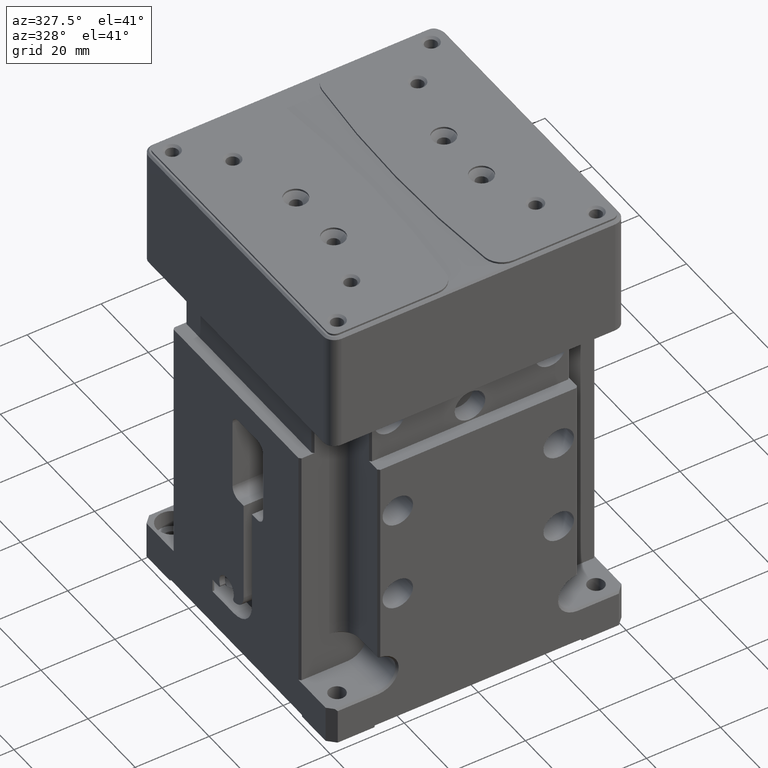
[diagram: clean part render]
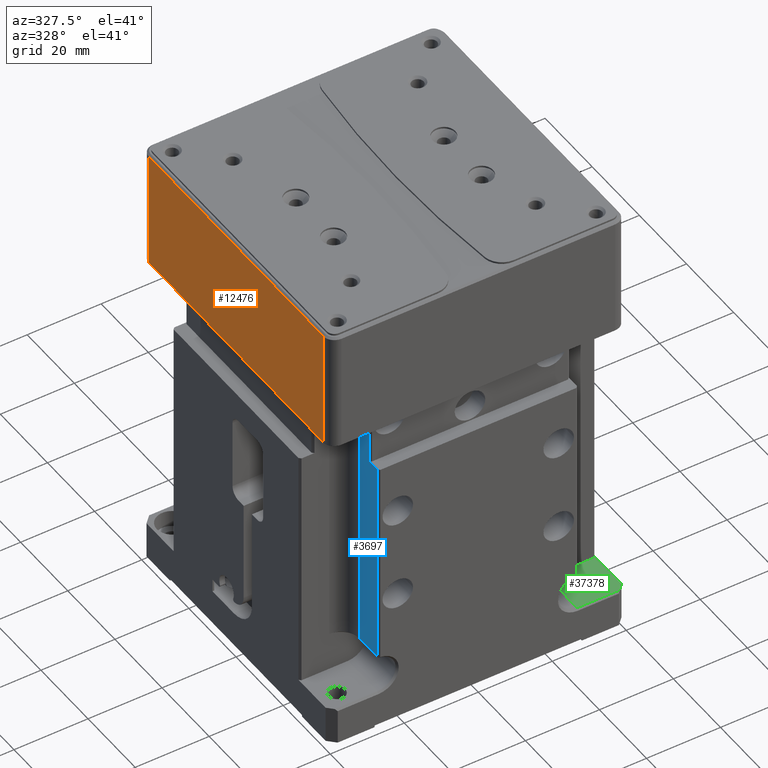
[diagram: same view with three faces highlighted in distinct colors, each labeled with its STEP entity id]
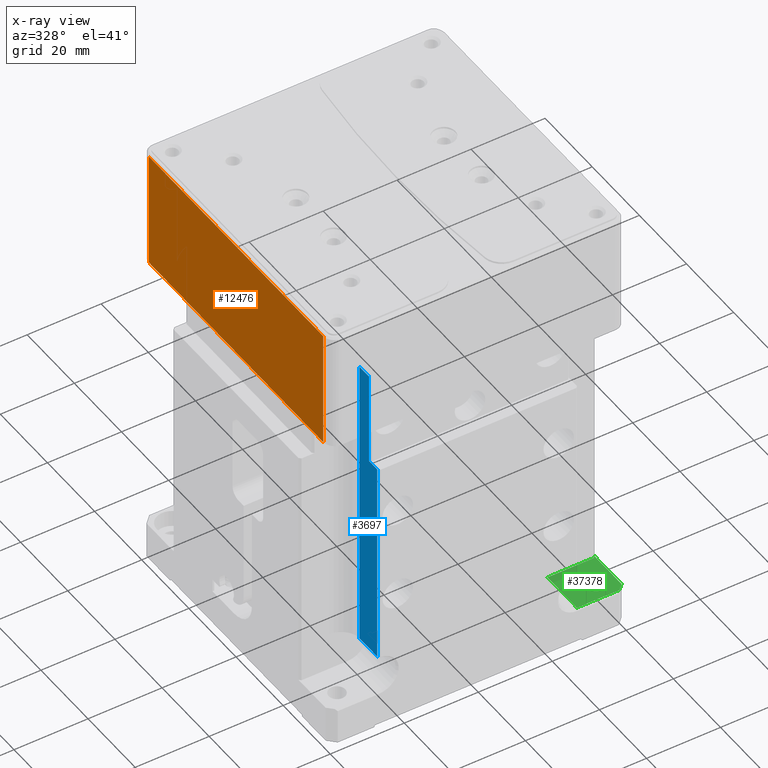
[diagram: x-ray of the same camera — body ghosted, the three highlighted faces saturated]
A machine part, auxiliary view with three faces highlighted in distinct colors.
The next image is the same camera in x-ray (body ghosted, the three faces saturated) — at least one of them is partly hidden behind the body in this view.
Their STEP definitions:

[orange] entity #12476 — the highlighted planar face has unit normal (-1, 0, 0).
#1438 = CARTESIAN_POINT ( 'NONE',  ( -40.00000000000000000, -37.00000000000000000, 79.50000000000000000 ) ) ;
#2376 = EDGE_CURVE ( 'NONE', #13807, #21157, #29660, .T. ) ;
#3347 = CARTESIAN_POINT ( 'NONE',  ( -39.99999999757000069, -36.99999996634999633, 111.5000000024000002 ) ) ;
#5922 = LINE ( 'NONE', #12058, #35560 ) ;
#6406 = CARTESIAN_POINT ( 'NONE',  ( -40.00000000000000000, 37.00000000000000000, 79.50000000000000000 ) ) ;
#6728 = PLANE ( 'NONE',  #12569 ) ;
#7694 = EDGE_CURVE ( 'NONE', #18618, #21157, #34799, .T. ) ;
#10094 = DIRECTION ( 'NONE',  ( -8.080514035016001840E-11, 8.543818984939000288E-10, -1.000000000000000000 ) ) ;
#10560 = ORIENTED_EDGE ( 'NONE', *, *, #15755, .T. ) ;
#11485 = VECTOR ( 'NONE', #26760, 1000.000000000000000 ) ;
#12058 = CARTESIAN_POINT ( 'NONE',  ( -39.99999999757000069, -36.99999996634999633, 111.5000000024000002 ) ) ;
#12084 = DIRECTION ( 'NONE',  ( 0.000000000000000000, 0.000000000000000000, 1.000000000000000000 ) ) ;
#12476 = ADVANCED_FACE ( 'NONE', ( #18615 ), #6728, .T. ) ;
#12569 = AXIS2_PLACEMENT_3D ( 'NONE', #24009, #15719, #12084 ) ;
#13807 = VERTEX_POINT ( 'NONE', #15555 ) ;
#15555 = CARTESIAN_POINT ( 'NONE',  ( -40.00000000000000000, -37.00000000000000000, 111.5000000000000000 ) ) ;
#15719 = DIRECTION ( 'NONE',  ( -1.000000000000000000, 0.000000000000000000, 0.000000000000000000 ) ) ;
#15755 = EDGE_CURVE ( 'NONE', #34438, #18618, #24688, .T. ) ;
#18615 = FACE_OUTER_BOUND ( 'NONE', #36070, .T. ) ;
#18618 = VERTEX_POINT ( 'NONE', #33310 ) ;
#21157 = VERTEX_POINT ( 'NONE', #1438 ) ;
#22866 = VECTOR ( 'NONE', #10094, 1000.000000000000000 ) ;
#23774 = CARTESIAN_POINT ( 'NONE',  ( -39.99999999740999357, 36.99999997265999951, 111.5000000026000038 ) ) ;
#24009 = CARTESIAN_POINT ( 'NONE',  ( -40.00000000000000000, 40.00000000000000000, 79.50000000000000000 ) ) ;
#24688 = LINE ( 'NONE', #27943, #22866 ) ;
#26760 = DIRECTION ( 'NONE',  ( -7.581024696315000995E-11, -1.051534415017999976E-09, -1.000000000000000000 ) ) ;
#27244 = DIRECTION ( 'NONE',  ( 2.159953899201999849E-12, 1.000000000000000000, 2.159665841336000256E-12 ) ) ;
#27943 = CARTESIAN_POINT ( 'NONE',  ( -39.99999999740999357, 36.99999997265999951, 111.5000000026000038 ) ) ;
#29660 = LINE ( 'NONE', #3347, #11485 ) ;
#32531 = DIRECTION ( 'NONE',  ( 0.000000000000000000, -1.000000000000000000, 0.000000000000000000 ) ) ;
#32780 = ORIENTED_EDGE ( 'NONE', *, *, #2376, .F. ) ;
#33310 = CARTESIAN_POINT ( 'NONE',  ( -40.00000000000000000, 37.00000000000000000, 79.50000000000000000 ) ) ;
#33764 = VECTOR ( 'NONE', #32531, 1000.000000000000000 ) ;
#34438 = VERTEX_POINT ( 'NONE', #23774 ) ;
#34799 = LINE ( 'NONE', #6406, #33764 ) ;
#35560 = VECTOR ( 'NONE', #27244, 1000.000000000000000 ) ;
#35643 = ORIENTED_EDGE ( 'NONE', *, *, #37893, .T. ) ;
#35778 = ORIENTED_EDGE ( 'NONE', *, *, #7694, .T. ) ;
#36070 = EDGE_LOOP ( 'NONE', ( #10560, #35778, #32780, #35643 ) ) ;
#37893 = EDGE_CURVE ( 'NONE', #13807, #34438, #5922, .T. ) ;

[blue] entity #3697 — the highlighted planar face has unit normal (1, 0, 0).
#81 = EDGE_CURVE ( 'NONE', #25015, #16219, #36411, .T. ) ;
#1471 = CARTESIAN_POINT ( 'NONE',  ( -27.00000000000000000, -36.00000000000000000, 67.00000000000000000 ) ) ;
#1941 = CARTESIAN_POINT ( 'NONE',  ( -27.00000000000000000, -36.00000000000000000, 67.00000000000000000 ) ) ;
#2356 = CARTESIAN_POINT ( 'NONE',  ( -27.00000000000000000, -39.50000000000000000, 67.00000000000000000 ) ) ;
#2537 = CARTESIAN_POINT ( 'NONE',  ( -27.00000000000000000, -36.00000000000000000, 92.50000000000000000 ) ) ;
#3410 = VERTEX_POINT ( 'NONE', #22921 ) ;
#3697 = ADVANCED_FACE ( 'NONE', ( #10429 ), #7158, .F. ) ;
#4442 = VERTEX_POINT ( 'NONE', #19324 ) ;
#5223 = VECTOR ( 'NONE', #36580, 1000.000000000000000 ) ;
#7158 = PLANE ( 'NONE',  #13103 ) ;
#7905 = DIRECTION ( 'NONE',  ( 1.000000000000000000, 0.000000000000000000, 0.000000000000000000 ) ) ;
#7933 = DIRECTION ( 'NONE',  ( 0.000000000000000000, 1.000000000000000000, 0.000000000000000000 ) ) ;
#10429 = FACE_OUTER_BOUND ( 'NONE', #31514, .T. ) ;
#11311 = EDGE_CURVE ( 'NONE', #16219, #3410, #16835, .T. ) ;
#11575 = LINE ( 'NONE', #37873, #26326 ) ;
#11770 = DIRECTION ( 'NONE',  ( -2.011923536325000134E-13, 2.290947660896000026E-10, -1.000000000000000000 ) ) ;
#13103 = AXIS2_PLACEMENT_3D ( 'NONE', #30792, #7905, #16744 ) ;
#13313 = CARTESIAN_POINT ( 'NONE',  ( -27.00000000002000178, -31.99999998120999578, 10.47722557500999940 ) ) ;
#13500 = EDGE_CURVE ( 'NONE', #4442, #22794, #33679, .T. ) ;
#14968 = VECTOR ( 'NONE', #19092, 1000.000000000000000 ) ;
#15096 = VERTEX_POINT ( 'NONE', #28270 ) ;
#16219 = VERTEX_POINT ( 'NONE', #2537 ) ;
#16471 = ORIENTED_EDGE ( 'NONE', *, *, #21381, .F. ) ;
#16744 = DIRECTION ( 'NONE',  ( 0.000000000000000000, 1.000000000000000000, 0.000000000000000000 ) ) ;
#16768 = CARTESIAN_POINT ( 'NONE',  ( -27.00000000000000000, -39.50000000000000000, 67.00000000000000000 ) ) ;
#16771 = LINE ( 'NONE', #2356, #25765 ) ;
#16835 = LINE ( 'NONE', #28369, #24778 ) ;
#16947 = DIRECTION ( 'NONE',  ( 0.000000000000000000, 0.000000000000000000, -1.000000000000000000 ) ) ;
#18051 = ORIENTED_EDGE ( 'NONE', *, *, #20232, .T. ) ;
#19092 = DIRECTION ( 'NONE',  ( 2.200787694714000282E-12, -1.000000000000000000, 5.216804752879999405E-12 ) ) ;
#19324 = CARTESIAN_POINT ( 'NONE',  ( -27.00000000002000178, -31.99999998120999578, 10.47722557500999940 ) ) ;
#20232 = EDGE_CURVE ( 'NONE', #3410, #4442, #11575, .T. ) ;
#20809 = VECTOR ( 'NONE', #7933, 1000.000000000000000 ) ;
#21381 = EDGE_CURVE ( 'NONE', #15096, #22794, #16771, .T. ) ;
#22509 = LINE ( 'NONE', #16768, #20809 ) ;
#22794 = VERTEX_POINT ( 'NONE', #24639 ) ;
#22921 = CARTESIAN_POINT ( 'NONE',  ( -27.00000000000000000, -32.00000000000000000, 92.50000000000000000 ) ) ;
#23608 = ORIENTED_EDGE ( 'NONE', *, *, #13500, .T. ) ;
#24639 = CARTESIAN_POINT ( 'NONE',  ( -27.00000000000000000, -39.50000000000000000, 10.47722557505000118 ) ) ;
#24778 = VECTOR ( 'NONE', #37751, 1000.000000000000000 ) ;
#25015 = VERTEX_POINT ( 'NONE', #1941 ) ;
#25765 = VECTOR ( 'NONE', #16947, 1000.000000000000000 ) ;
#26326 = VECTOR ( 'NONE', #11770, 1000.000000000000000 ) ;
#28270 = CARTESIAN_POINT ( 'NONE',  ( -27.00000000000000000, -39.50000000000000000, 67.00000000000000000 ) ) ;
#28369 = CARTESIAN_POINT ( 'NONE',  ( -27.00000000000000000, -36.00000000000000000, 92.50000000000000000 ) ) ;
#28594 = ORIENTED_EDGE ( 'NONE', *, *, #35624, .T. ) ;
#30792 = CARTESIAN_POINT ( 'NONE',  ( -27.00000000000000000, -40.00000000000000000, 92.50000000000000000 ) ) ;
#31115 = ORIENTED_EDGE ( 'NONE', *, *, #11311, .T. ) ;
#31514 = EDGE_LOOP ( 'NONE', ( #16471, #28594, #37427, #31115, #18051, #23608 ) ) ;
#33679 = LINE ( 'NONE', #13313, #14968 ) ;
#35624 = EDGE_CURVE ( 'NONE', #15096, #25015, #22509, .T. ) ;
#36411 = LINE ( 'NONE', #1471, #5223 ) ;
#36580 = DIRECTION ( 'NONE',  ( 0.000000000000000000, 0.000000000000000000, 1.000000000000000000 ) ) ;
#37427 = ORIENTED_EDGE ( 'NONE', *, *, #81, .T. ) ;
#37751 = DIRECTION ( 'NONE',  ( 0.000000000000000000, 1.000000000000000000, 0.000000000000000000 ) ) ;
#37873 = CARTESIAN_POINT ( 'NONE',  ( -27.00000000000000000, -32.00000000000000000, 92.50000000000000000 ) ) ;

[green] entity #37378 — the highlighted planar face has unit normal (0, 0, 1).
#489 = EDGE_CURVE ( 'NONE', #36870, #19432, #34971, .T. ) ;
#1042 = CARTESIAN_POINT ( 'NONE',  ( 35.00000000000000000, -35.00000000000000000, 0.000000000000000000 ) ) ;
#1748 = EDGE_CURVE ( 'NONE', #12178, #37773, #16639, .T. ) ;
#1892 = ORIENTED_EDGE ( 'NONE', *, *, #6668, .F. ) ;
#2073 = CARTESIAN_POINT ( 'NONE',  ( 27.00000009120384803, -31.16662125324333488, 3.740684999362181631E-20 ) ) ;
#2153 = VERTEX_POINT ( 'NONE', #35011 ) ;
#4383 = ORIENTED_EDGE ( 'NONE', *, *, #13875, .F. ) ;
#4870 = EDGE_CURVE ( 'NONE', #37710, #19432, #23120, .T. ) ;
#5110 = CARTESIAN_POINT ( 'NONE',  ( 39.50000000000000000, -27.00000000000000000, 0.000000000000000000 ) ) ;
#5215 = CARTESIAN_POINT ( 'NONE',  ( 38.50000000000000000, -39.50000000000000000, 0.000000000000000000 ) ) ;
#5545 = CARTESIAN_POINT ( 'NONE',  ( 40.00000000000000000, -26.50000000000000000, 0.000000000000000000 ) ) ;
#6668 = EDGE_CURVE ( 'NONE', #36870, #19138, #36905, .T. ) ;
#7857 = VECTOR ( 'NONE', #13904, 1000.000000000000114 ) ;
#8177 = CARTESIAN_POINT ( 'NONE',  ( 38.50000000000000000, -39.50000000000000000, 0.000000000000000000 ) ) ;
#8341 = B_SPLINE_CURVE_WITH_KNOTS ( 'NONE', 3,
 ( #36473, #13603, #2073, #22418 ),
 .UNSPECIFIED., .F., .F.,
 ( 4, 4 ),
 ( 0.000000000000000000, 1.000000000000000000 ),
 .UNSPECIFIED. ) ;
#8878 = ORIENTED_EDGE ( 'NONE', *, *, #19984, .F. ) ;
#9838 = AXIS2_PLACEMENT_3D ( 'NONE', #31209, #16604, #37138 ) ;
#10669 = CARTESIAN_POINT ( 'NONE',  ( 40.00000000000000000, -26.50000000000000000, 0.000000000000000000 ) ) ;
#10825 = ORIENTED_EDGE ( 'NONE', *, *, #19656, .T. ) ;
#11925 = CARTESIAN_POINT ( 'NONE',  ( -35.00000000000000000, -35.00000000000000000, 0.000000000000000000 ) ) ;
#12104 = FACE_BOUND ( 'NONE', #15694, .T. ) ;
#12178 = VERTEX_POINT ( 'NONE', #31321 ) ;
#12757 = DIRECTION ( 'NONE',  ( 0.000000000000000000, 0.000000000000000000, 1.000000000000000000 ) ) ;
#13603 = CARTESIAN_POINT ( 'NONE',  ( 27.00000018240565325, -35.33324250648666265, 1.948195482753464567E-15 ) ) ;
#13875 = EDGE_CURVE ( 'NONE', #19138, #37773, #8341, .T. ) ;
#13904 = DIRECTION ( 'NONE',  ( -0.7071067811865474617, -0.7071067811865474617, 0.000000000000000000 ) ) ;
#14549 = CARTESIAN_POINT ( 'NONE',  ( 27.00000000000000000, -27.00000000000000000, 0.000000000000000000 ) ) ;
#14618 = DIRECTION ( 'NONE',  ( 0.7071067811865969777, 0.7071067811864980568, 0.000000000000000000 ) ) ;
#14669 = VECTOR ( 'NONE', #28359, 1000.000000000000000 ) ;
#15694 = EDGE_LOOP ( 'NONE', ( #8878, #26930 ) ) ;
#16497 = AXIS2_PLACEMENT_3D ( 'NONE', #11925, #30176, #21309 ) ;
#16604 = DIRECTION ( 'NONE',  ( 0.000000000000000000, 0.000000000000000000, -1.000000000000000000 ) ) ;
#16639 = LINE ( 'NONE', #5110, #14669 ) ;
#16941 = CARTESIAN_POINT ( 'NONE',  ( 37.25000000000000000, -35.00000000000000000, 0.000000000000000000 ) ) ;
#17050 = ORIENTED_EDGE ( 'NONE', *, *, #1748, .T. ) ;
#18204 = CARTESIAN_POINT ( 'NONE',  ( 27.00000027360000132, -39.49986375972999753, 0.0001362402748190000052 ) ) ;
#18636 = PLANE ( 'NONE',  #16497 ) ;
#19138 = VERTEX_POINT ( 'NONE', #18204 ) ;
#19432 = VERTEX_POINT ( 'NONE', #35473 ) ;
#19656 = EDGE_CURVE ( 'NONE', #37710, #12178, #34269, .T. ) ;
#19984 = EDGE_CURVE ( 'NONE', #2153, #20053, #37317, .T. ) ;
#20053 = VERTEX_POINT ( 'NONE', #16941 ) ;
#20247 = CARTESIAN_POINT ( 'NONE',  ( 40.00000000000000000, -26.50000000000000000, 0.000000000000000000 ) ) ;
#20773 = AXIS2_PLACEMENT_3D ( 'NONE', #1042, #12757, #24477 ) ;
#21309 = DIRECTION ( 'NONE',  ( 1.000000000000000000, 0.000000000000000000, 0.000000000000000000 ) ) ;
#21474 = CIRCLE ( 'NONE', #9838, 2.250000000000001776 ) ;
#22418 = CARTESIAN_POINT ( 'NONE',  ( 27.00000000000000000, -27.00000000000000000, 0.000000000000000000 ) ) ;
#23120 = LINE ( 'NONE', #20247, #35375 ) ;
#24477 = DIRECTION ( 'NONE',  ( -1.000000000000000000, 0.000000000000000000, 0.000000000000000000 ) ) ;
#26594 = ORIENTED_EDGE ( 'NONE', *, *, #4870, .F. ) ;
#26604 = DIRECTION ( 'NONE',  ( 0.000000000000000000, -1.000000000000000000, 0.000000000000000000 ) ) ;
#26930 = ORIENTED_EDGE ( 'NONE', *, *, #28609, .T. ) ;
#27699 = CARTESIAN_POINT ( 'NONE',  ( 30.83333351573333303, -39.49990917315012240, 9.082684987377179523E-05 ) ) ;
#28359 = DIRECTION ( 'NONE',  ( -1.000000000000000000, 0.000000000000000000, 0.000000000000000000 ) ) ;
#28609 = EDGE_CURVE ( 'NONE', #2153, #20053, #21474, .T. ) ;
#29609 = FACE_OUTER_BOUND ( 'NONE', #37503, .T. ) ;
#29823 = CARTESIAN_POINT ( 'NONE',  ( 38.50000000000000000, -39.50000000000000000, 0.000000000000000000 ) ) ;
#30176 = DIRECTION ( 'NONE',  ( 0.000000000000000000, 0.000000000000000000, 1.000000000000000000 ) ) ;
#31209 = CARTESIAN_POINT ( 'NONE',  ( 35.00000000000000000, -35.00000000000000000, 0.000000000000000000 ) ) ;
#31321 = CARTESIAN_POINT ( 'NONE',  ( 39.50000000000000000, -27.00000000000000000, 0.000000000000000000 ) ) ;
#32461 = VECTOR ( 'NONE', #14618, 1000.000000000000000 ) ;
#33160 = ORIENTED_EDGE ( 'NONE', *, *, #489, .T. ) ;
#34269 = LINE ( 'NONE', #10669, #7857 ) ;
#34971 = LINE ( 'NONE', #5215, #32461 ) ;
#35011 = CARTESIAN_POINT ( 'NONE',  ( 32.75000000000000000, -35.00000000000000000, 0.000000000000000000 ) ) ;
#35375 = VECTOR ( 'NONE', #26604, 1000.000000000000000 ) ;
#35473 = CARTESIAN_POINT ( 'NONE',  ( 40.00000000000000000, -38.00000000000000000, 0.000000000000000000 ) ) ;
#35943 = CARTESIAN_POINT ( 'NONE',  ( 34.66666675786666474, -39.49995458657506475, 4.541342493709945834E-05 ) ) ;
#36473 = CARTESIAN_POINT ( 'NONE',  ( 27.00000027360000132, -39.49986375972999753, 0.0001362402748190000052 ) ) ;
#36509 = CARTESIAN_POINT ( 'NONE',  ( 27.00000027360000132, -39.49986375972999753, 0.0001362402748190000052 ) ) ;
#36870 = VERTEX_POINT ( 'NONE', #8177 ) ;
#36905 = B_SPLINE_CURVE_WITH_KNOTS ( 'NONE', 3,
 ( #29823, #35943, #27699, #36509 ),
 .UNSPECIFIED., .F., .F.,
 ( 4, 4 ),
 ( 0.000000000000000000, 1.000000000000000000 ),
 .UNSPECIFIED. ) ;
#37138 = DIRECTION ( 'NONE',  ( -1.000000000000000000, 0.000000000000000000, 0.000000000000000000 ) ) ;
#37317 = CIRCLE ( 'NONE', #20773, 2.250000000000001776 ) ;
#37378 = ADVANCED_FACE ( 'NONE', ( #12104, #29609 ), #18636, .T. ) ;
#37503 = EDGE_LOOP ( 'NONE', ( #4383, #1892, #33160, #26594, #10825, #17050 ) ) ;
#37710 = VERTEX_POINT ( 'NONE', #5545 ) ;
#37773 = VERTEX_POINT ( 'NONE', #14549 ) ;